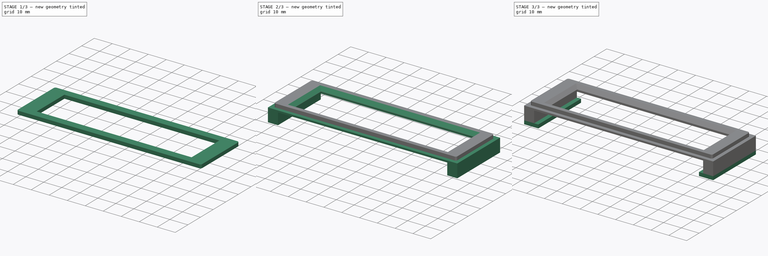
[diagram: build sequence overview — one tinted view per stage of 3, left to right]
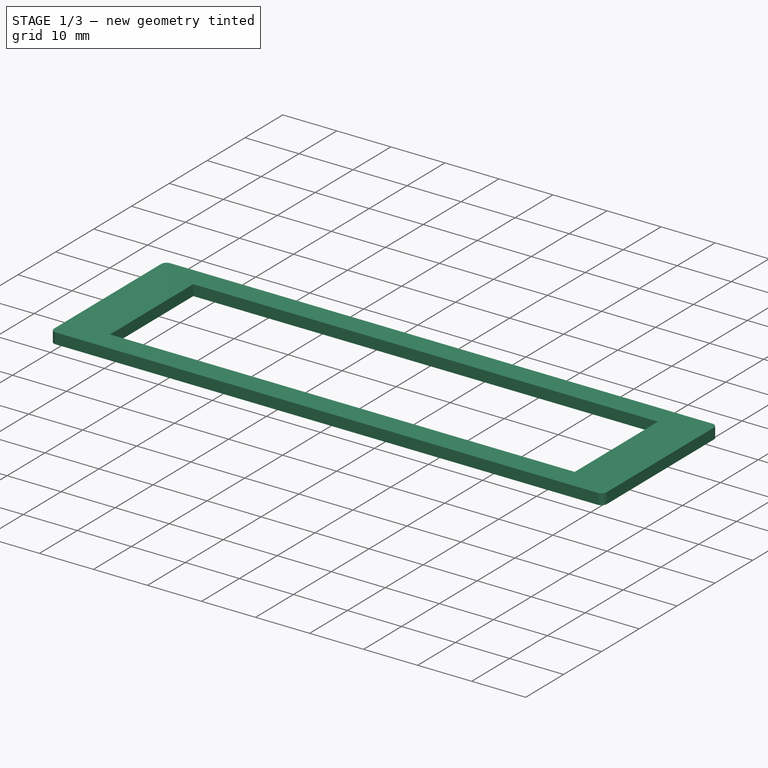
[diagram: stage 1 of 3 — iso view after this stage's code; geometry added in this stage tinted green]
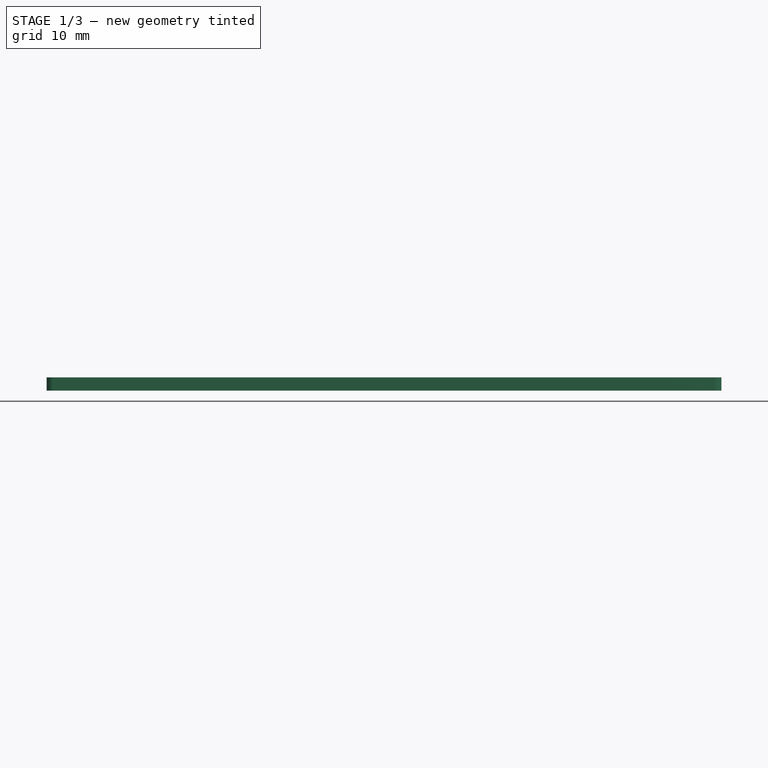
[diagram: stage 1 of 3 — front view after this stage's code; geometry added in this stage tinted green]
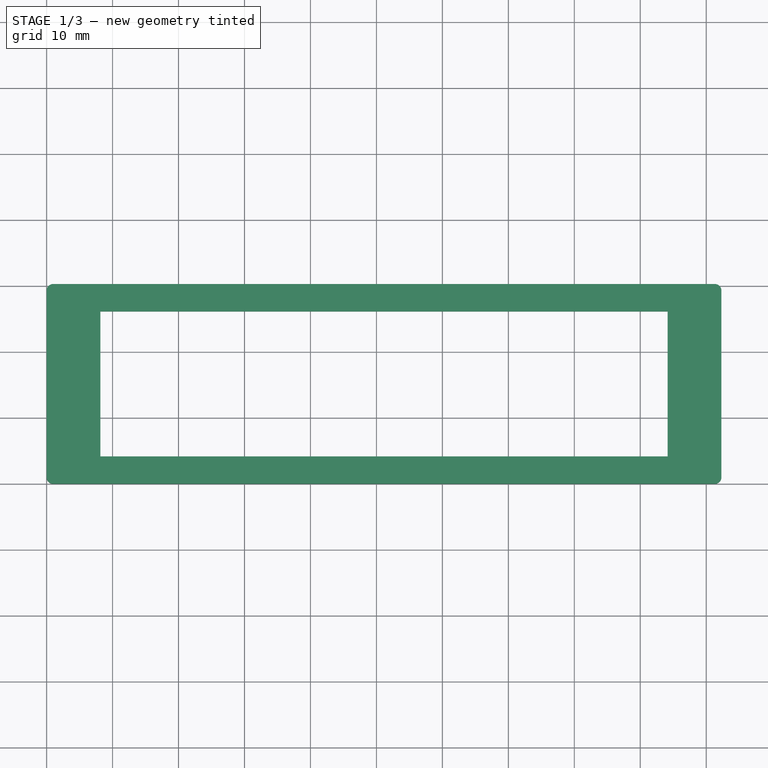
[diagram: stage 1 of 3 — top view after this stage's code; geometry added in this stage tinted green]
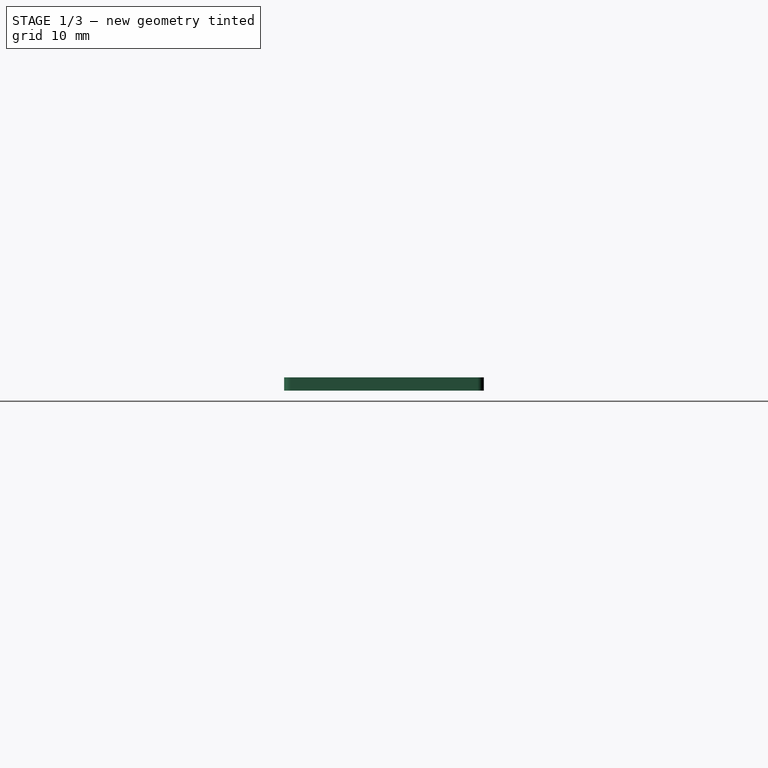
[diagram: stage 1 of 3 — right view after this stage's code; geometry added in this stage tinted green]
FCSTD DOCUMENT  (FreeCAD 0.18R16093 +53 (Git))
Label: hmp2030_display_bezzle
License: All rights reserved
LicenseURL: http://en.wikipedia.org/wiki/All_rights_reserved
objects: Sketcher::SketchObject×6, PartDesign::Pad×4, PartDesign::Pocket×2, PartDesign::Chamfer×1, PartDesign::Body×1
note: 20 computed .brp shape members not serialized (recipe doc carries the construction recipe); baked Part::Feature solids carry a one-line shape summary decoded from their .brp

FEATURE [Sketcher::SketchObject] Sketch
  MapMode = 5
  Support = -> [XY_Plane]
  sketch-geometry (8):
    g0: LineSegment StartX=1 StartY=0 StartZ=0 EndX=101.3 EndY=0 EndZ=0
    g1: LineSegment StartX=102.3 StartY=1 StartZ=0 EndX=102.3 EndY=29.3 EndZ=0
    g2: LineSegment StartX=101.3 StartY=30.3 StartZ=0 EndX=1 EndY=30.3 EndZ=0
    g3: LineSegment StartX=4e-16 StartY=29.3 StartZ=0 EndX=4e-16 EndY=1 EndZ=0
    g4: ArcOfCircle CenterX=101.3 CenterY=29.3 CenterZ=0 NormalX=0 NormalY=0 NormalZ=1 AngleXU=0 Radius=1 StartAngle=3e-16 EndAngle=1.5708
    g5: ArcOfCircle CenterX=101.3 CenterY=1 CenterZ=0 NormalX=0 NormalY=0 NormalZ=1 AngleXU=0 Radius=1 StartAngle=4.71239 EndAngle=6.28319
    g6: ArcOfCircle CenterX=1 CenterY=1 CenterZ=0 NormalX=0 NormalY=0 NormalZ=1 AngleXU=0 Radius=1 StartAngle=3.14159 EndAngle=4.71239
    g7: ArcOfCircle CenterX=1 CenterY=29.3 CenterZ=0 NormalX=0 NormalY=0 NormalZ=1 AngleXU=0 Radius=1 StartAngle=1.5708 EndAngle=3.14159
  constraints (20):
    c: Horizontal(g0)
    c: Horizontal(g2)
    c: Vertical(g1)
    c: Vertical(g3)
    c: Tangent(g2,g4) = -1.5708
    c: Tangent(g1,g4) = -1.5708
    c: Tangent(g1,g5) = -1.5708
    c: Tangent(g0,g5) = -1.5708
    c: Tangent(g3,g6) = -1.5708
    c: Tangent(g0,g6) = -1.5708
    c: Tangent(g3,g7) = -1.5708
    c: Tangent(g2,g7) = -1.5708
    c: DistanceX(g3,g1) = 102.3
    c: DistanceY(g0,g2) = 30.3
    c: Radius(g4) = 1
    c: Equal(g4,g5)
    c: Equal(g4,g7)
    c: Equal(g4,g6)
    c: PointOnObject(g0,g-1)
    c: PointOnObject(g3,g-2)
FEATURE [PartDesign::Pad] Pad
  Length = 2
  Length2 = 100
  Profile = -> Sketch
  Type = 0
FEATURE [Sketcher::SketchObject] Sketch001
  ExternalGeometry = -> [Pad]
  MapMode = 5
  Placement = pos=(0,0,2) rot=(0,0,1;0rad)
  Support = -> [Pad]
  sketch-geometry (6):
    g0: LineSegment StartX=8.15 StartY=26.15 StartZ=0 EndX=94.15 EndY=26.15 EndZ=0
    g1: LineSegment StartX=94.15 StartY=26.15 StartZ=0 EndX=94.15 EndY=4.15 EndZ=0
    g2: LineSegment StartX=94.15 StartY=4.15 StartZ=0 EndX=8.15 EndY=4.15 EndZ=0
    g3: LineSegment StartX=8.15 StartY=4.15 StartZ=0 EndX=8.15 EndY=26.15 EndZ=0
    g4: LineSegment [constr] StartX=51.15 StartY=54.7006 StartZ=0 EndX=51.15 EndY=-15.4582 EndZ=0
    g5: LineSegment [constr] StartX=-7.0214 StartY=15.15 StartZ=0 EndX=123.789 EndY=15.15 EndZ=0
  constraints (13):
    c: Coincident(g0,g1)
    c: Coincident(g1,g2)
    c: Coincident(g2,g3)
    c: Coincident(g3,g0)
    c: Horizontal(g0)
    c: Horizontal(g2)
    c: Vertical(g1)
    c: DistanceY(g1,g1) = 22
    c: DistanceX(g0,g0) = 86
    c: Symmetric(g-3,g-3,g5)
    c: DistanceX(g-1,g4) = 51.15
    c: Symmetric(g0,g0,g4)
    c: Symmetric(g2,g0,g5)
FEATURE [PartDesign::Pocket] Pocket
  BaseFeature = -> Pad
  Length = 5
  Length2 = 100
  Profile = -> Sketch001
  Type = 0
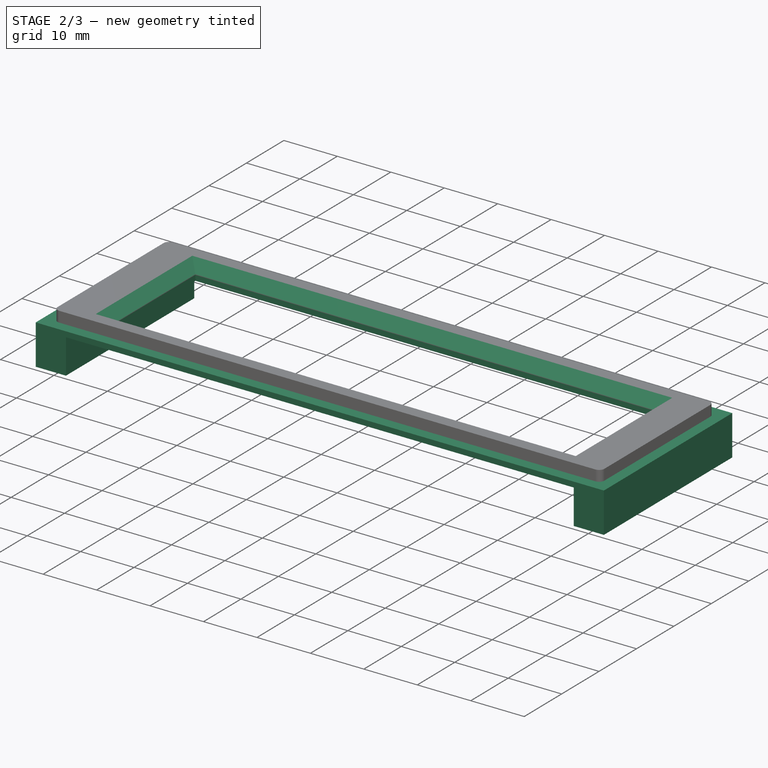
[diagram: stage 2 of 3 — iso view after this stage's code; geometry added in this stage tinted green]
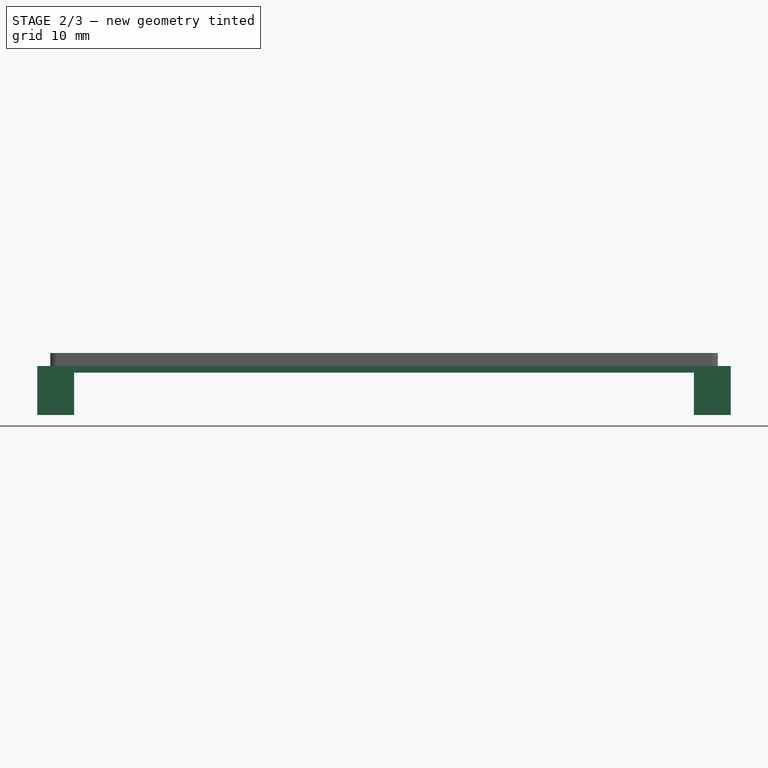
[diagram: stage 2 of 3 — front view after this stage's code; geometry added in this stage tinted green]
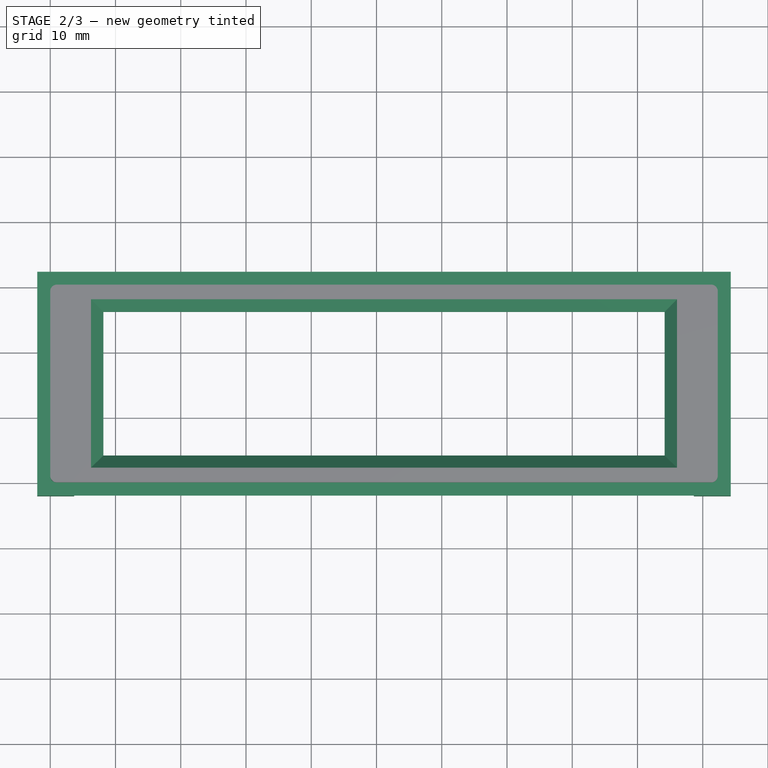
[diagram: stage 2 of 3 — top view after this stage's code; geometry added in this stage tinted green]
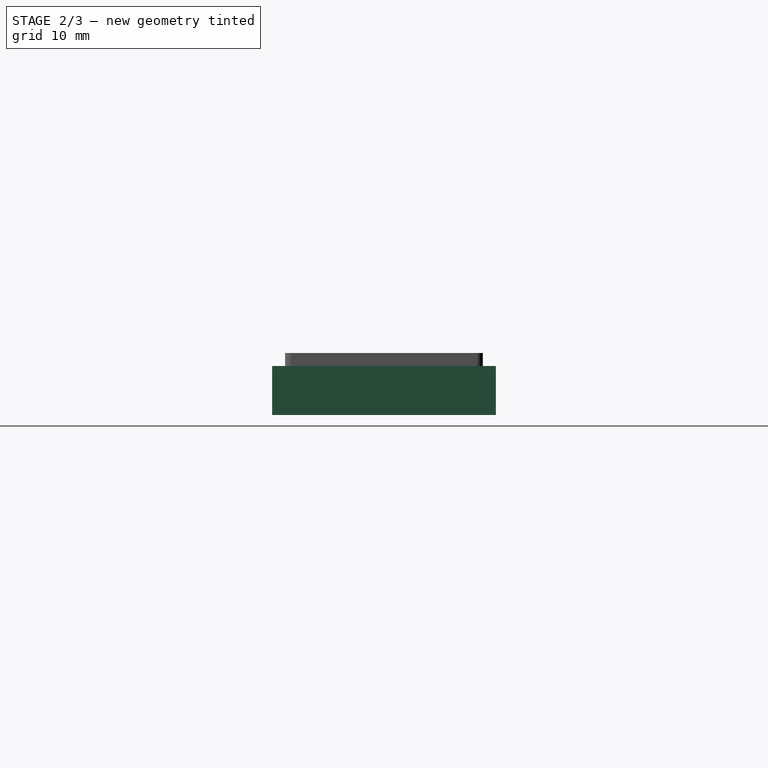
[diagram: stage 2 of 3 — right view after this stage's code; geometry added in this stage tinted green]
FEATURE [Sketcher::SketchObject] Sketch002
  ExternalGeometry = -> [Pocket]
  MapMode = 5
  Placement = pos=(0,0,0) rot=(1,0,0;3.14159rad)
  Support = -> [Pocket]
  sketch-geometry (8):
    g0: LineSegment StartX=-2 StartY=2 StartZ=0 EndX=104.3 EndY=2 EndZ=0
    g1: LineSegment StartX=104.3 StartY=2 StartZ=0 EndX=104.3 EndY=-32.3 EndZ=0
    g2: LineSegment StartX=104.3 StartY=-32.3 StartZ=0 EndX=-2 EndY=-32.3 EndZ=0
    g3: LineSegment StartX=-2 StartY=-32.3 StartZ=0 EndX=-2 EndY=2 EndZ=0
    g4: LineSegment StartX=8.15 StartY=-4.15 StartZ=0 EndX=94.15 EndY=-4.15 EndZ=0
    g5: LineSegment StartX=94.15 StartY=-4.15 StartZ=0 EndX=94.15 EndY=-26.15 EndZ=0
    g6: LineSegment StartX=94.15 StartY=-26.15 StartZ=0 EndX=8.15 EndY=-26.15 EndZ=0
    g7: LineSegment StartX=8.15 StartY=-26.15 StartZ=0 EndX=8.15 EndY=-4.15 EndZ=0
  constraints (22):
    c: Coincident(g0,g1)
    c: Coincident(g1,g2)
    c: Coincident(g2,g3)
    c: Coincident(g3,g0)
    c: Horizontal(g0)
    c: Horizontal(g2)
    c: Vertical(g1)
    c: Vertical(g3)
    c: DistanceY(g-6,g0) = 2
    c: DistanceX(g-7,g0) = 2
    c: DistanceY(g2,g-5) = 2
    c: DistanceX(g2,g-8) = 2
    c: Coincident(g4,g5)
    c: Coincident(g5,g6)
    c: Coincident(g6,g7)
    c: Coincident(g7,g4)
    c: Horizontal(g4)
    c: Horizontal(g6)
    c: Vertical(g5)
    c: Vertical(g7)
    c: Coincident(g4,g-3)
    c: Coincident(g5,g-4)
FEATURE [PartDesign::Pad] Pad001
  BaseFeature = -> Pocket
  Length = 1
  Length2 = 100
  Profile = -> Sketch002
  Type = 0
FEATURE [PartDesign::Chamfer] Chamfer
  Base = -> Pad001 [Edge28,Edge25,Edge26,Edge27]
  BaseFeature = -> Pad001
  Size = 1.9
FEATURE [Sketcher::SketchObject] Sketch003
  ExternalGeometry = -> [Chamfer]
  MapMode = 5
  Placement = pos=(0,0,-1) rot=(1,0,0;3.14159rad)
  Support = -> [Chamfer]
  sketch-geometry (9):
    g0: LineSegment [constr] StartX=51.15 StartY=14.9083 StartZ=0 EndX=51.15 EndY=-48.2863 EndZ=0
    g1: LineSegment StartX=98.65 StartY=2 StartZ=0 EndX=104.3 EndY=2 EndZ=0
    g2: LineSegment StartX=104.3 StartY=2 StartZ=0 EndX=104.3 EndY=-32.3 EndZ=0
    g3: LineSegment StartX=104.3 StartY=-32.3 StartZ=0 EndX=98.65 EndY=-32.3 EndZ=0
    g4: LineSegment StartX=98.65 StartY=-32.3 StartZ=0 EndX=98.65 EndY=2 EndZ=0
    g5: LineSegment StartX=-2 StartY=2 StartZ=0 EndX=3.65 EndY=2 EndZ=0
    g6: LineSegment StartX=3.65 StartY=2 StartZ=0 EndX=3.65 EndY=-32.3 EndZ=0
    g7: LineSegment StartX=3.65 StartY=-32.3 StartZ=0 EndX=-2 EndY=-32.3 EndZ=0
    g8: LineSegment StartX=-2 StartY=-32.3 StartZ=0 EndX=-2 EndY=2 EndZ=0
  constraints (21):
    c: Symmetric(g-4,g-3,g0)
    c: Coincident(g1,g2)
    c: Coincident(g2,g3)
    c: Coincident(g3,g4)
    c: Coincident(g4,g1)
    c: Horizontal(g1)
    c: Horizontal(g3)
    c: Vertical(g4)
    c: Coincident(g5,g6)
    c: Coincident(g6,g7)
    c: Coincident(g7,g8)
    c: Coincident(g8,g5)
    c: Horizontal(g5)
    c: Horizontal(g7)
    c: Vertical(g8)
    c: Symmetric(g3,g6,g0)
    c: DistanceX(g5,g1) = 95
    c: Symmetric(g1,g5,g0)
    c: PointOnObject(g7,g-6)
    c: Coincident(g2,g-5)
    c: Coincident(g1,g-5)
FEATURE [PartDesign::Pad] Pad002
  BaseFeature = -> Chamfer
  Length = 6.5
  Length2 = 100
  Profile = -> Sketch003
  Type = 0
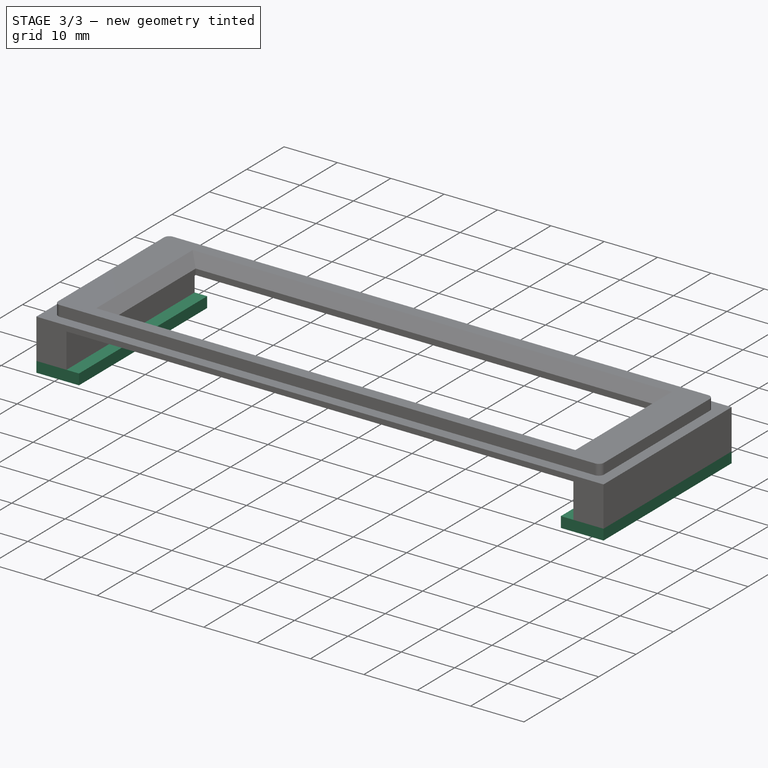
[diagram: stage 3 of 3 — iso view after this stage's code; geometry added in this stage tinted green]
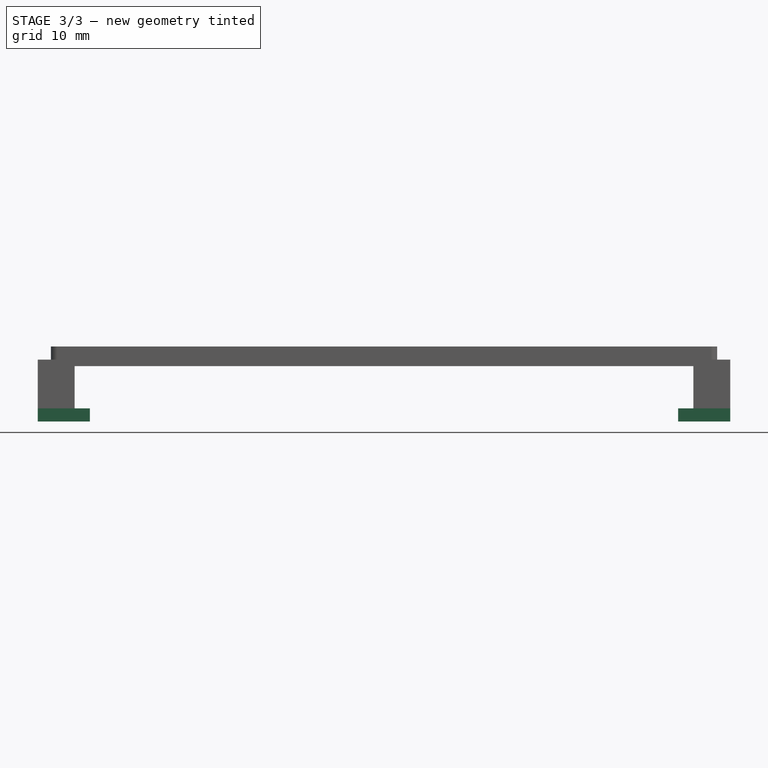
[diagram: stage 3 of 3 — front view after this stage's code; geometry added in this stage tinted green]
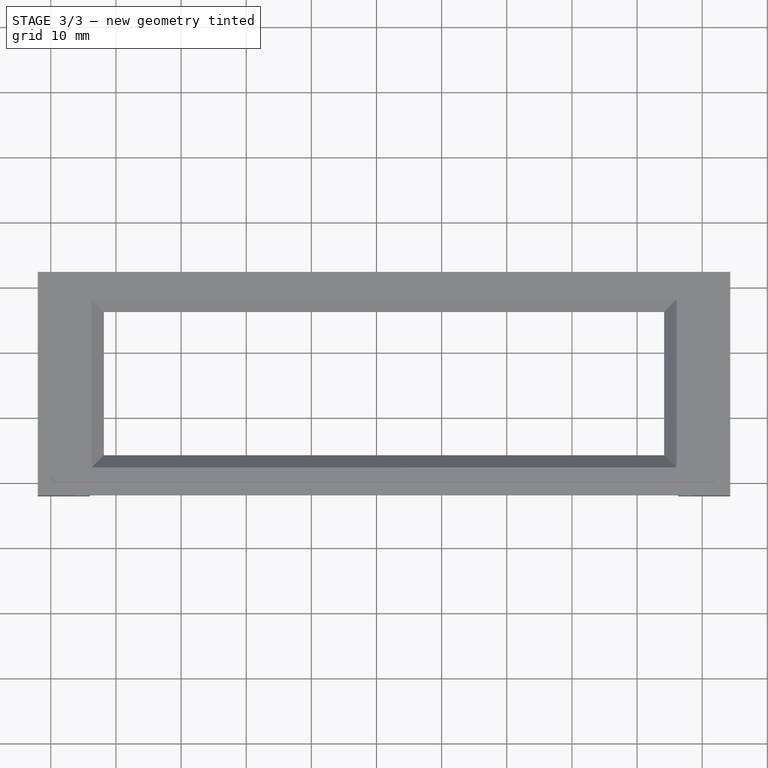
[diagram: stage 3 of 3 — top view after this stage's code; geometry added in this stage tinted green]
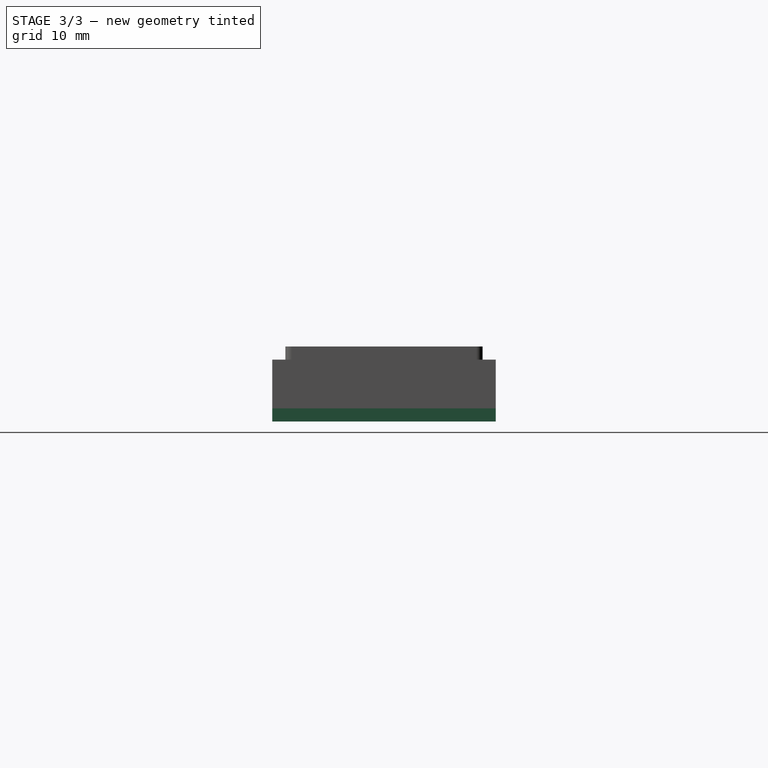
[diagram: stage 3 of 3 — right view after this stage's code; geometry added in this stage tinted green]
FEATURE [Sketcher::SketchObject] Sketch004
  ExternalGeometry = -> [Pad002]
  MapMode = 5
  Placement = pos=(0,0,-7.5) rot=(1,0,0;3.14159rad)
  Support = -> [Pad002]
  sketch-geometry (8):
    g0: LineSegment StartX=104.3 StartY=2 StartZ=0 EndX=96.3 EndY=2 EndZ=0
    g1: LineSegment StartX=96.3 StartY=2 StartZ=0 EndX=96.3 EndY=-32.3 EndZ=0
    g2: LineSegment StartX=96.3 StartY=-32.3 StartZ=0 EndX=104.3 EndY=-32.3 EndZ=0
    g3: LineSegment StartX=104.3 StartY=-32.3 StartZ=0 EndX=104.3 EndY=2 EndZ=0
    g4: LineSegment StartX=-2 StartY=2 StartZ=0 EndX=6 EndY=2 EndZ=0
    g5: LineSegment StartX=6 StartY=2 StartZ=0 EndX=6 EndY=-32.3 EndZ=0
    g6: LineSegment StartX=6 StartY=-32.3 StartZ=0 EndX=-2 EndY=-32.3 EndZ=0
    g7: LineSegment StartX=-2 StartY=-32.3 StartZ=0 EndX=-2 EndY=2 EndZ=0
  constraints (20):
    c: Coincident(g0,g1)
    c: Coincident(g1,g2)
    c: Coincident(g2,g3)
    c: Coincident(g3,g0)
    c: Horizontal(g0)
    c: Horizontal(g2)
    c: Vertical(g1)
    c: Coincident(g4,g5)
    c: Coincident(g5,g6)
    c: Coincident(g6,g7)
    c: Coincident(g7,g4)
    c: Horizontal(g4)
    c: Horizontal(g6)
    c: Vertical(g5)
    c: DistanceX(g4,g4) = 8
    c: Coincident(g4,g-3)
    c: Coincident(g-3,g6)
    c: DistanceX(g0,g0) = 8
    c: Coincident(g0,g-4)
    c: Coincident(g2,g-4)
FEATURE [PartDesign::Pad] Pad003
  BaseFeature = -> Pad002
  Length = 2
  Length2 = 100
  Profile = -> Sketch004
  Type = 0
FEATURE [Sketcher::SketchObject] Sketch005
  MapMode = 5
  Placement = pos=(0,0,-9.5) rot=(1,0,0;3.14159rad)
  Support = -> [Pad003]
  sketch-geometry (2):
    g0: Circle CenterX=0.89357 CenterY=-15.7084 CenterZ=0 NormalX=0 NormalY=0 NormalZ=1 AngleXU=0 Radius=1.6
    g1: Circle CenterX=101.417 CenterY=-15.2433 CenterZ=0 NormalX=0 NormalY=0 NormalZ=1 AngleXU=0 Radius=1.6
  constraints (2):
    c: Radius(g1) = 1.6
    c: Radius(g0) = 1.6
FEATURE [PartDesign::Pocket] Pocket001
  BaseFeature = -> Pad003
  Length = 5
  Length2 = 100
  Profile = -> Sketch005
  Type = 0
FEATURE [PartDesign::Body] Body
  Group = -> [Sketch,Pad,Sketch001,Pocket,Sketch002,Pad001,Chamfer,Sketch003,Pad002,Sketch004,Pad003,Sketch005,Pocket001]
  Origin = -> Origin
  Tip = -> Pocket001
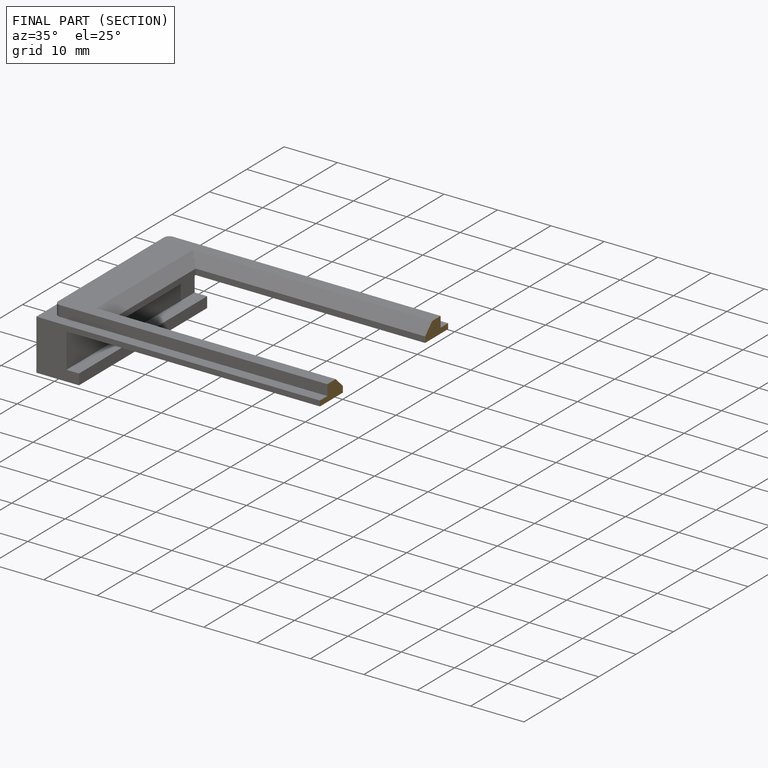
[diagram: finished part — half-section view (interior)]
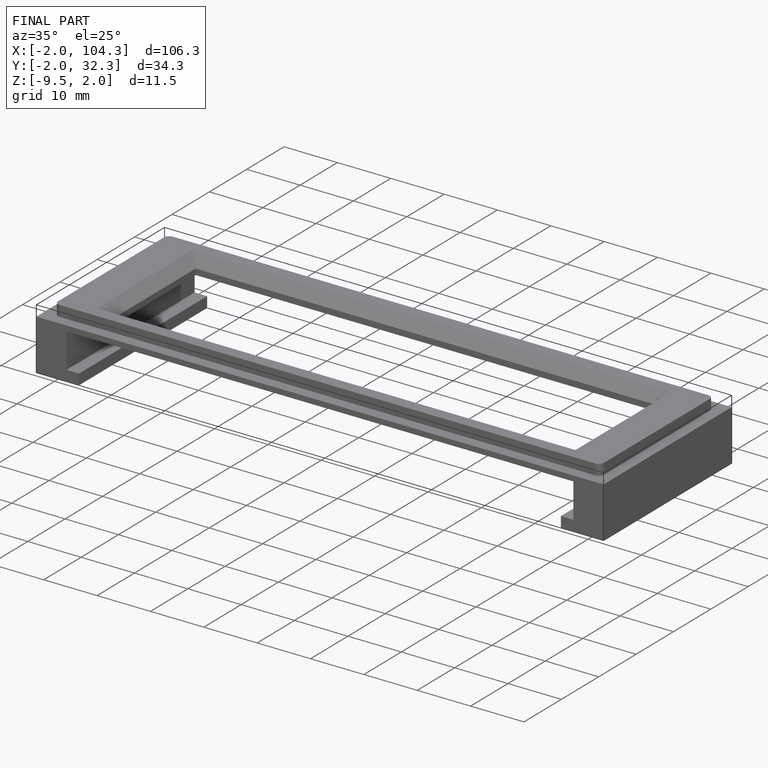
[diagram: finished part — iso view with bounding-box wireframe]
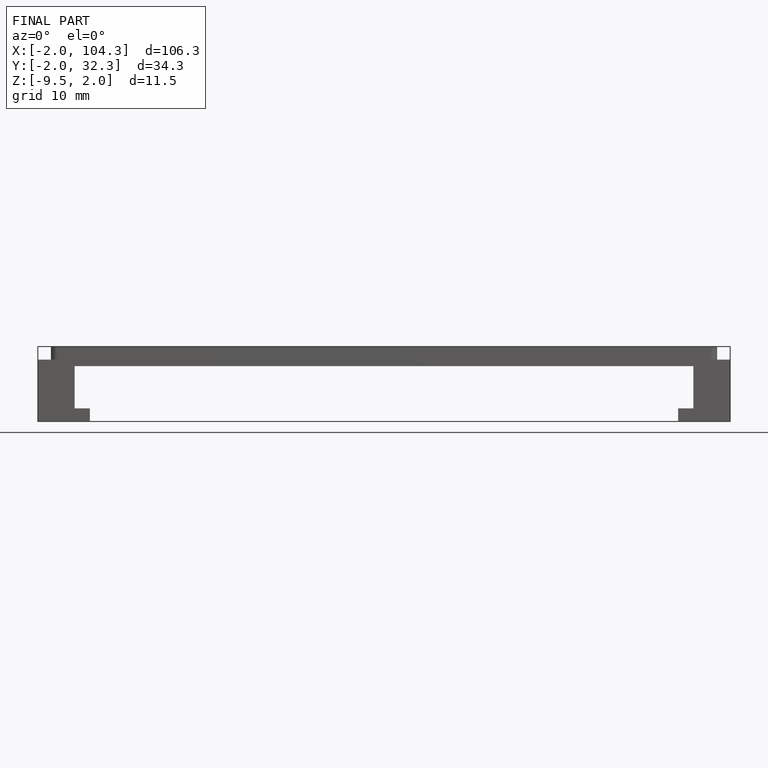
[diagram: finished part — front view with bounding-box wireframe]
